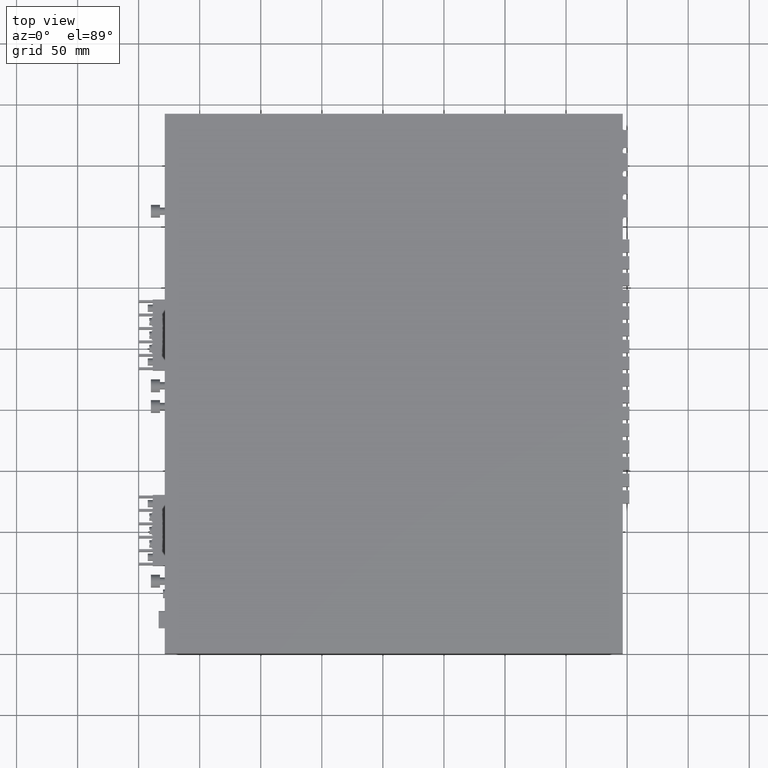
[diagram: clean part render]
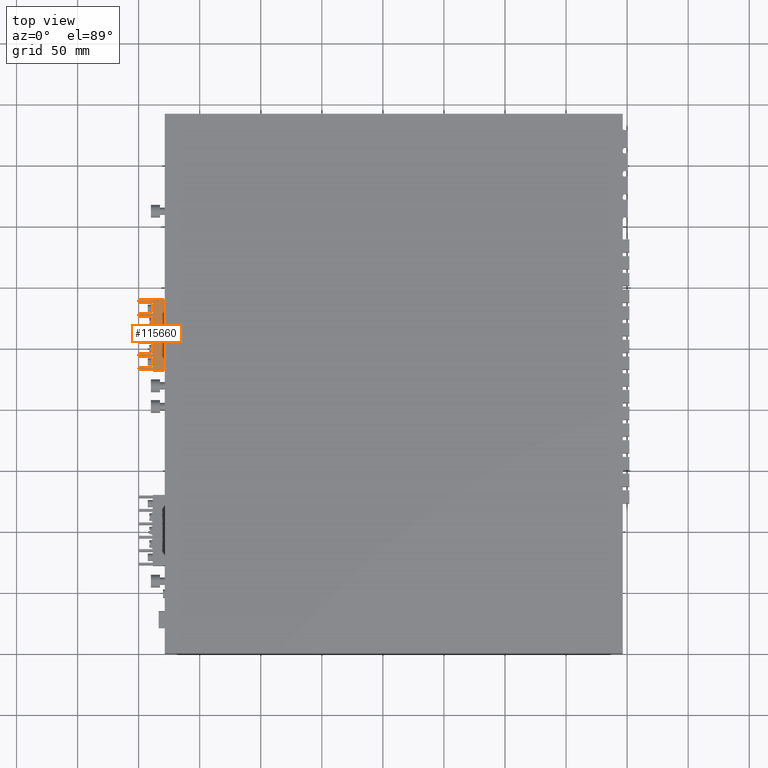
[diagram: same view with one face highlighted and labeled with its STEP entity id]
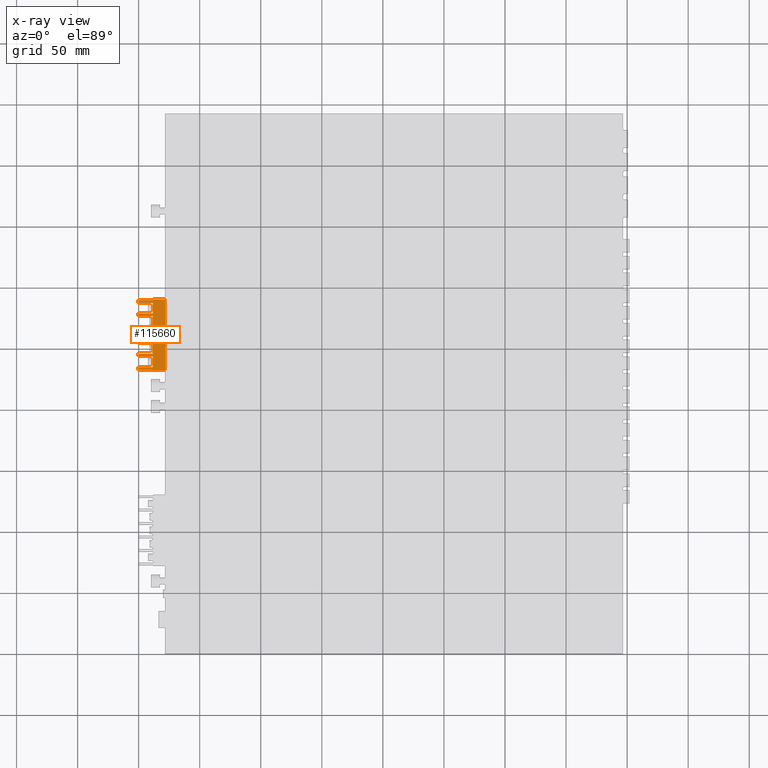
[diagram: x-ray of the same camera — body ghosted, the highlighted face saturated]
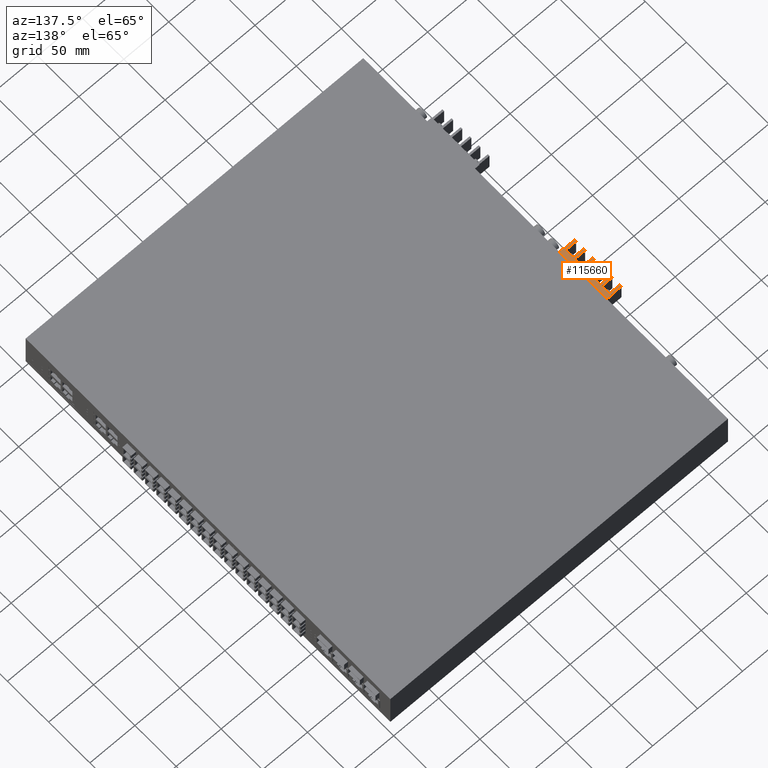
[diagram: same view with one face highlighted and labeled with its STEP entity id]
A machine part, top view. The second image highlights one B-rep face of the part: STEP entity #115660.
The next image is the same camera in x-ray: the body ghosted, the highlighted face saturated — about 0% of this face is hidden behind the body in this view.
A second angle (auxiliary view) of the same face is appended — the face is thin or edge-on in the first view.
In plain terms, the highlighted planar face has unit normal (0, 0, 1).
Its self-contained STEP definition (entity closure, byte-faithful):
#67490=CARTESIAN_POINT('',(69.4060130425647,-10.9963677763395,0.));
#67500=DIRECTION('',(0.,0.,-1.));
#67510=VECTOR('',#67500,1.);
#67520=LINE('',#67490,#67510);
#67530=CARTESIAN_POINT('',(69.4060130425647,-10.9963677763395,
0.199999999980264));
#67540=VERTEX_POINT('',#67530);
#67550=CARTESIAN_POINT('',(69.4060130425647,-10.9963677763395,
-9.90000000001973));
#67560=VERTEX_POINT('',#67550);
#67570=EDGE_CURVE('',#67540,#67560,#67520,.T.);
#70080=CARTESIAN_POINT('',(22.9060130425647,-10.9963677763395,
-9.90000000001973));
#70090=VERTEX_POINT('',#70080);
#70120=CARTESIAN_POINT('',(0.,-10.9963677763395,-9.90000000001973));
#70130=DIRECTION('',(-1.,0.,0.));
#70140=VECTOR('',#70130,1.);
#70150=LINE('',#70120,#70140);
#70160=CARTESIAN_POINT('',(13.9060130425647,-10.9963677763395,
-9.90000000001973));
#70170=VERTEX_POINT('',#70160);
#70180=EDGE_CURVE('',#70090,#70170,#70150,.T.);
#78900=CARTESIAN_POINT('',(44.9060130425647,-10.9963677763395,0.));
#78910=DIRECTION('',(0.,0.,1.));
#78920=VECTOR('',#78910,1.);
#78930=LINE('',#78900,#78920);
#78940=CARTESIAN_POINT('',(44.9060130425647,-10.9963677763395,
-21.4000000000197));
#78950=VERTEX_POINT('',#78940);
#78960=CARTESIAN_POINT('',(44.9060130425647,-10.9963677763395,
-9.90000000001973));
#78970=VERTEX_POINT('',#78960);
#78980=EDGE_CURVE('',#78950,#78970,#78930,.T.);
#82960=CARTESIAN_POINT('',(0.,-10.9963677763395,-9.90000000001973));
#82970=DIRECTION('',(-1.,0.,0.));
#82980=VECTOR('',#82970,1.);
#82990=LINE('',#82960,#82980);
#83000=CARTESIAN_POINT('',(35.9060130425647,-10.9963677763395,
-9.90000000001973));
#83010=VERTEX_POINT('',#83000);
#83020=EDGE_CURVE('',#78970,#83010,#82990,.T.);
#84500=CARTESIAN_POINT('',(24.9060130425647,-10.9963677763395,
-21.4000000000197));
#84510=VERTEX_POINT('',#84500);
#84560=CARTESIAN_POINT('',(0.,-10.9963677763395,-21.4000000000197));
#84570=DIRECTION('',(1.,0.,0.));
#84580=VECTOR('',#84570,1.);
#84590=LINE('',#84560,#84580);
#84600=CARTESIAN_POINT('',(22.9060130425647,-10.9963677763395,
-21.4000000000197));
#84610=VERTEX_POINT('',#84600);
#84620=EDGE_CURVE('',#84610,#84510,#84590,.T.);
#88210=CARTESIAN_POINT('',(11.4060130425647,-10.9963677763395,
0.199999999980264));
#88220=VERTEX_POINT('',#88210);
#88250=CARTESIAN_POINT('',(0.,-10.9963677763395,0.199999999980264));
#88260=DIRECTION('',(-1.,0.,0.));
#88270=VECTOR('',#88260,1.);
#88280=LINE('',#88250,#88270);
#88290=EDGE_CURVE('',#67540,#88220,#88280,.T.);
#106300=CARTESIAN_POINT('',(57.9060130425647,-10.9963677763395,
-21.4000000000197));
#106310=VERTEX_POINT('',#106300);
#106340=CARTESIAN_POINT('',(0.,-10.9963677763395,-21.4000000000197));
#106350=DIRECTION('',(1.,0.,0.));
#106360=VECTOR('',#106350,1.);
#106370=LINE('',#106340,#106360);
#106380=CARTESIAN_POINT('',(55.9060130425647,-10.9963677763395,
-21.4000000000197));
#106390=VERTEX_POINT('',#106380);
#106400=EDGE_CURVE('',#106390,#106310,#106370,.T.);
#113940=CARTESIAN_POINT('',(9.95594689256465,-10.9963677763395,
0.740066149980265));
#113950=DIRECTION('',(-0.,1.,0.));
#113960=DIRECTION('',(1.,0.,0.));
#113970=AXIS2_PLACEMENT_3D('',#113940,#113950,#113960);
#113980=PLANE('',#113970);
#113990=ORIENTED_EDGE('',*,*,#67570,.T.);
#114000=ORIENTED_EDGE('',*,*,#88290,.F.);
#114010=CARTESIAN_POINT('',(11.4060130425647,-10.9963677763395,0.));
#114020=DIRECTION('',(0.,0.,1.));
#114030=VECTOR('',#114020,1.);
#114040=LINE('',#114010,#114030);
#114050=CARTESIAN_POINT('',(11.4060130425647,-10.9963677763395,
-9.90000000001973));
#114060=VERTEX_POINT('',#114050);
#114070=EDGE_CURVE('',#114060,#88220,#114040,.T.);
#114080=ORIENTED_EDGE('',*,*,#114070,.T.);
#114090=CARTESIAN_POINT('',(0.,-10.9963677763395,-9.90000000001973));
#114100=DIRECTION('',(-1.,0.,0.));
#114110=VECTOR('',#114100,1.);
#114120=LINE('',#114090,#114110);
#114130=CARTESIAN_POINT('',(11.9060130425647,-10.9963677763395,
-9.90000000001973));
#114140=VERTEX_POINT('',#114130);
#114150=EDGE_CURVE('',#114140,#114060,#114120,.T.);
#114160=ORIENTED_EDGE('',*,*,#114150,.T.);
#114170=CARTESIAN_POINT('',(11.9060130425647,-10.9963677763395,0.));
#114180=DIRECTION('',(0.,0.,1.));
#114190=VECTOR('',#114180,1.);
#114200=LINE('',#114170,#114190);
#114210=CARTESIAN_POINT('',(11.9060130425647,-10.9963677763395,
-21.4000000000197));
#114220=VERTEX_POINT('',#114210);
#114230=EDGE_CURVE('',#114220,#114140,#114200,.T.);
#114240=ORIENTED_EDGE('',*,*,#114230,.T.);
#114250=CARTESIAN_POINT('',(0.,-10.9963677763395,-21.4000000000197));
#114260=DIRECTION('',(1.,0.,0.));
#114270=VECTOR('',#114260,1.);
#114280=LINE('',#114250,#114270);
#114290=CARTESIAN_POINT('',(13.9060130425647,-10.9963677763395,
-21.4000000000197));
#114300=VERTEX_POINT('',#114290);
#114310=EDGE_CURVE('',#114220,#114300,#114280,.T.);
#114320=ORIENTED_EDGE('',*,*,#114310,.F.);
#114330=CARTESIAN_POINT('',(13.9060130425647,-10.9963677763395,0.));
#114340=DIRECTION('',(0.,0.,-1.));
#114350=VECTOR('',#114340,1.);
#114360=LINE('',#114330,#114350);
#114370=EDGE_CURVE('',#70170,#114300,#114360,.T.);
#114380=ORIENTED_EDGE('',*,*,#114370,.T.);
#114390=ORIENTED_EDGE('',*,*,#70180,.T.);
#114400=CARTESIAN_POINT('',(22.9060130425647,-10.9963677763395,0.));
#114410=DIRECTION('',(0.,0.,1.));
#114420=VECTOR('',#114410,1.);
#114430=LINE('',#114400,#114420);
#114440=EDGE_CURVE('',#84610,#70090,#114430,.T.);
#114450=ORIENTED_EDGE('',*,*,#114440,.T.);
#114460=ORIENTED_EDGE('',*,*,#84620,.F.);
#114470=CARTESIAN_POINT('',(24.9060130425647,-10.9963677763395,0.));
#114480=DIRECTION('',(0.,0.,-1.));
#114490=VECTOR('',#114480,1.);
#114500=LINE('',#114470,#114490);
#114510=CARTESIAN_POINT('',(24.9060130425647,-10.9963677763395,
-9.90000000001973));
#114520=VERTEX_POINT('',#114510);
#114530=EDGE_CURVE('',#114520,#84510,#114500,.T.);
#114540=ORIENTED_EDGE('',*,*,#114530,.T.);
#114550=CARTESIAN_POINT('',(0.,-10.9963677763395,-9.90000000001973));
#114560=DIRECTION('',(-1.,0.,0.));
#114570=VECTOR('',#114560,1.);
#114580=LINE('',#114550,#114570);
#114590=CARTESIAN_POINT('',(33.9060130425647,-10.9963677763395,
-9.90000000001973));
#114600=VERTEX_POINT('',#114590);
#114610=EDGE_CURVE('',#114600,#114520,#114580,.T.);
#114620=ORIENTED_EDGE('',*,*,#114610,.T.);
#114630=CARTESIAN_POINT('',(33.9060130425647,-10.9963677763395,0.));
#114640=DIRECTION('',(0.,0.,1.));
#114650=VECTOR('',#114640,1.);
#114660=LINE('',#114630,#114650);
#114670=CARTESIAN_POINT('',(33.9060130425647,-10.9963677763395,
-21.4000000000197));
#114680=VERTEX_POINT('',#114670);
#114690=EDGE_CURVE('',#114680,#114600,#114660,.T.);
#114700=ORIENTED_EDGE('',*,*,#114690,.T.);
#114710=CARTESIAN_POINT('',(0.,-10.9963677763395,-21.4000000000197));
#114720=DIRECTION('',(1.,0.,0.));
#114730=VECTOR('',#114720,1.);
#114740=LINE('',#114710,#114730);
#114750=CARTESIAN_POINT('',(35.9060130425647,-10.9963677763395,
-21.4000000000197));
#114760=VERTEX_POINT('',#114750);
#114770=EDGE_CURVE('',#114680,#114760,#114740,.T.);
#114780=ORIENTED_EDGE('',*,*,#114770,.F.);
#114790=CARTESIAN_POINT('',(35.9060130425647,-10.9963677763395,0.));
#114800=DIRECTION('',(0.,0.,-1.));
#114810=VECTOR('',#114800,1.);
#114820=LINE('',#114790,#114810);
#114830=EDGE_CURVE('',#83010,#114760,#114820,.T.);
#114840=ORIENTED_EDGE('',*,*,#114830,.T.);
#114850=ORIENTED_EDGE('',*,*,#83020,.T.);
#114860=ORIENTED_EDGE('',*,*,#78980,.T.);
#114870=CARTESIAN_POINT('',(0.,-10.9963677763395,-21.4000000000197));
#114880=DIRECTION('',(1.,0.,0.));
#114890=VECTOR('',#114880,1.);
#114900=LINE('',#114870,#114890);
#114910=CARTESIAN_POINT('',(46.9060130425647,-10.9963677763395,
-21.4000000000197));
#114920=VERTEX_POINT('',#114910);
#114930=EDGE_CURVE('',#78950,#114920,#114900,.T.);
#114940=ORIENTED_EDGE('',*,*,#114930,.F.);
#114950=CARTESIAN_POINT('',(46.9060130425647,-10.9963677763395,0.));
#114960=DIRECTION('',(0.,0.,-1.));
#114970=VECTOR('',#114960,1.);
#114980=LINE('',#114950,#114970);
#114990=CARTESIAN_POINT('',(46.9060130425647,-10.9963677763395,
-9.90000000001973));
#115000=VERTEX_POINT('',#114990);
#115010=EDGE_CURVE('',#115000,#114920,#114980,.T.);
#115020=ORIENTED_EDGE('',*,*,#115010,.T.);
#115030=CARTESIAN_POINT('',(0.,-10.9963677763395,-9.90000000001973));
#115040=DIRECTION('',(-1.,0.,0.));
#115050=VECTOR('',#115040,1.);
#115060=LINE('',#115030,#115050);
#115070=CARTESIAN_POINT('',(55.9060130425647,-10.9963677763395,
-9.90000000001973));
#115080=VERTEX_POINT('',#115070);
#115090=EDGE_CURVE('',#115080,#115000,#115060,.T.);
#115100=ORIENTED_EDGE('',*,*,#115090,.T.);
#115110=CARTESIAN_POINT('',(55.9060130425647,-10.9963677763395,0.));
#115120=DIRECTION('',(0.,0.,1.));
#115130=VECTOR('',#115120,1.);
#115140=LINE('',#115110,#115130);
#115150=EDGE_CURVE('',#106390,#115080,#115140,.T.);
#115160=ORIENTED_EDGE('',*,*,#115150,.T.);
#115170=ORIENTED_EDGE('',*,*,#106400,.F.);
#115180=CARTESIAN_POINT('',(57.9060130425647,-10.9963677763395,0.));
#115190=DIRECTION('',(0.,0.,-1.));
#115200=VECTOR('',#115190,1.);
#115210=LINE('',#115180,#115200);
#115220=CARTESIAN_POINT('',(57.9060130425647,-10.9963677763395,
-9.90000000001973));
#115230=VERTEX_POINT('',#115220);
#115240=EDGE_CURVE('',#115230,#106310,#115210,.T.);
#115250=ORIENTED_EDGE('',*,*,#115240,.T.);
#115260=CARTESIAN_POINT('',(0.,-10.9963677763395,-9.90000000001973));
#115270=DIRECTION('',(-1.,0.,0.));
#115280=VECTOR('',#115270,1.);
#115290=LINE('',#115260,#115280);
#115300=CARTESIAN_POINT('',(66.9060130425647,-10.9963677763395,
-9.90000000001973));
#115310=VERTEX_POINT('',#115300);
#115320=EDGE_CURVE('',#115310,#115230,#115290,.T.);
#115330=ORIENTED_EDGE('',*,*,#115320,.T.);
#115340=CARTESIAN_POINT('',(66.9060130425647,-10.9963677763395,0.));
#115350=DIRECTION('',(0.,0.,1.));
#115360=VECTOR('',#115350,1.);
#115370=LINE('',#115340,#115360);
#115380=CARTESIAN_POINT('',(66.9060130425647,-10.9963677763395,
-21.4000000000197));
#115390=VERTEX_POINT('',#115380);
#115400=EDGE_CURVE('',#115390,#115310,#115370,.T.);
#115410=ORIENTED_EDGE('',*,*,#115400,.T.);
#115420=CARTESIAN_POINT('',(0.,-10.9963677763395,-21.4000000000197));
#115430=DIRECTION('',(1.,0.,0.));
#115440=VECTOR('',#115430,1.);
#115450=LINE('',#115420,#115440);
#115460=CARTESIAN_POINT('',(68.9060130425647,-10.9963677763395,
-21.4000000000197));
#115470=VERTEX_POINT('',#115460);
#115480=EDGE_CURVE('',#115390,#115470,#115450,.T.);
#115490=ORIENTED_EDGE('',*,*,#115480,.F.);
#115500=CARTESIAN_POINT('',(68.9060130425647,-10.9963677763395,0.));
#115510=DIRECTION('',(0.,0.,-1.));
#115520=VECTOR('',#115510,1.);
#115530=LINE('',#115500,#115520);
#115540=CARTESIAN_POINT('',(68.9060130425647,-10.9963677763395,
-9.90000000001973));
#115550=VERTEX_POINT('',#115540);
#115560=EDGE_CURVE('',#115550,#115470,#115530,.T.);
#115570=ORIENTED_EDGE('',*,*,#115560,.T.);
#115580=CARTESIAN_POINT('',(0.,-10.9963677763395,-9.90000000001973));
#115590=DIRECTION('',(-1.,0.,0.));
#115600=VECTOR('',#115590,1.);
#115610=LINE('',#115580,#115600);
#115620=EDGE_CURVE('',#67560,#115550,#115610,.T.);
#115630=ORIENTED_EDGE('',*,*,#115620,.T.);
#115640=EDGE_LOOP('',(#115630,#115570,#115490,#115410,#115330,#115250,
#115170,#115160,#115100,#115020,#114940,#114860,#114850,#114840,#114780,
#114700,#114620,#114540,#114460,#114450,#114390,#114380,#114320,#114240,
#114160,#114080,#114000,#113990));
#115650=FACE_OUTER_BOUND('',#115640,.T.);
#115660=ADVANCED_FACE('',(#115650),#113980,.T.);